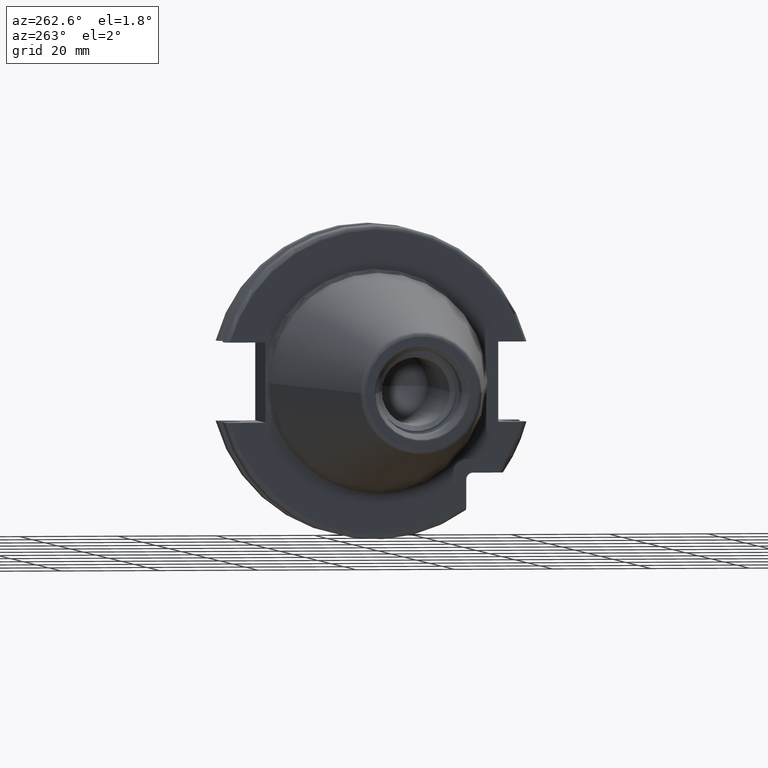
[diagram: clean part render]
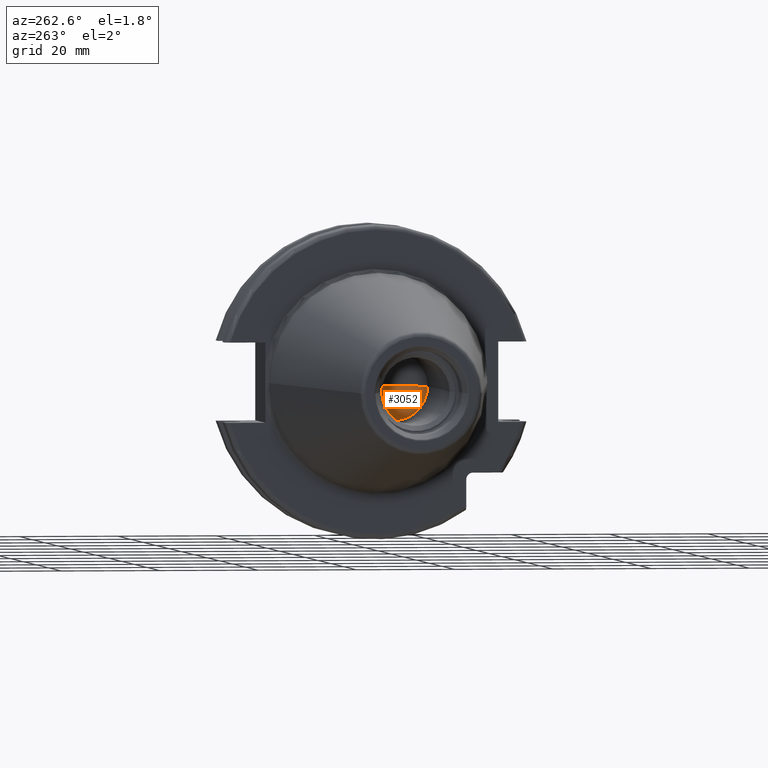
[diagram: same view with one face highlighted and labeled with its STEP entity id]
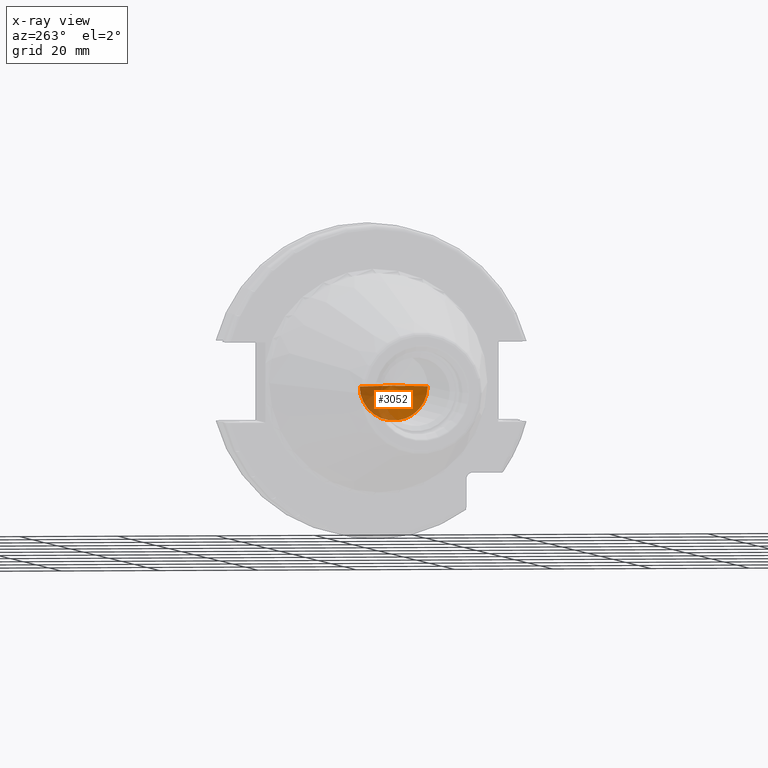
[diagram: x-ray of the same camera — body ghosted, the highlighted face saturated]
A machine part, auxiliary view. The second image highlights one B-rep face of the part: STEP entity #3052.
The next image is the same camera in x-ray: the body ghosted, the highlighted face saturated — about 35% of this face is hidden behind the body in this view.
In plain terms, the highlighted conical surface has half-angle 59 deg.
Its self-contained STEP definition (entity closure, byte-faithful):
#1308=CARTESIAN_POINT('',(-2.425E1,0.E0,0.E0));
#1309=DIRECTION('',(-1.E0,0.E0,0.E0));
#1310=DIRECTION('',(0.E0,1.E0,0.E0));
#1311=AXIS2_PLACEMENT_3D('',#1308,#1309,#1310);
#1322=DIRECTION('',(-5.150380749101E-1,8.571673007021E-1,0.E0));
#1323=VECTOR('',#1322,8.073103108730E0);
#1324=CARTESIAN_POINT('',(-2.009204451633E1,0.E0,0.E0));
#1325=LINE('',#1324,#1323);
#1326=DIRECTION('',(-5.150380749101E-1,-8.571673007021E-1,0.E0));
#1327=VECTOR('',#1326,8.073103108730E0);
#1328=CARTESIAN_POINT('',(-2.009204451633E1,0.E0,0.E0));
#1329=LINE('',#1328,#1327);
#1348=CARTESIAN_POINT('',(-2.009204451633E1,0.E0,0.E0));
#1349=CARTESIAN_POINT('',(-2.425E1,6.92E0,0.E0));
#1350=VERTEX_POINT('',#1348);
#1351=VERTEX_POINT('',#1349);
#1372=CARTESIAN_POINT('',(-2.425E1,-6.92E0,0.E0));
#1373=VERTEX_POINT('',#1372);
#3042=CARTESIAN_POINT('',(-2.217102225816E1,0.E0,0.E0));
#3043=DIRECTION('',(-1.E0,0.E0,0.E0));
#3044=DIRECTION('',(0.E0,1.E0,0.E0));
#3045=AXIS2_PLACEMENT_3D('',#3042,#3043,#3044);
#3046=CONICAL_SURFACE('',#3045,3.46E0,5.9E1);
#3047=ORIENTED_EDGE('',*,*,#3034,.F.);
#3048=ORIENTED_EDGE('',*,*,#3037,.T.);
#3049=ORIENTED_EDGE('',*,*,#3008,.F.);
#3050=EDGE_LOOP('',(#3047,#3048,#3049));
#3051=FACE_OUTER_BOUND('',#3050,.F.);
#3052=ADVANCED_FACE('',(#3051),#3046,.F.);
#1312=CIRCLE('',#1311,6.92E0);
#3008=EDGE_CURVE('',#1351,#1373,#1312,.T.);
#3034=EDGE_CURVE('',#1350,#1351,#1325,.T.);
#3037=EDGE_CURVE('',#1350,#1373,#1329,.T.);